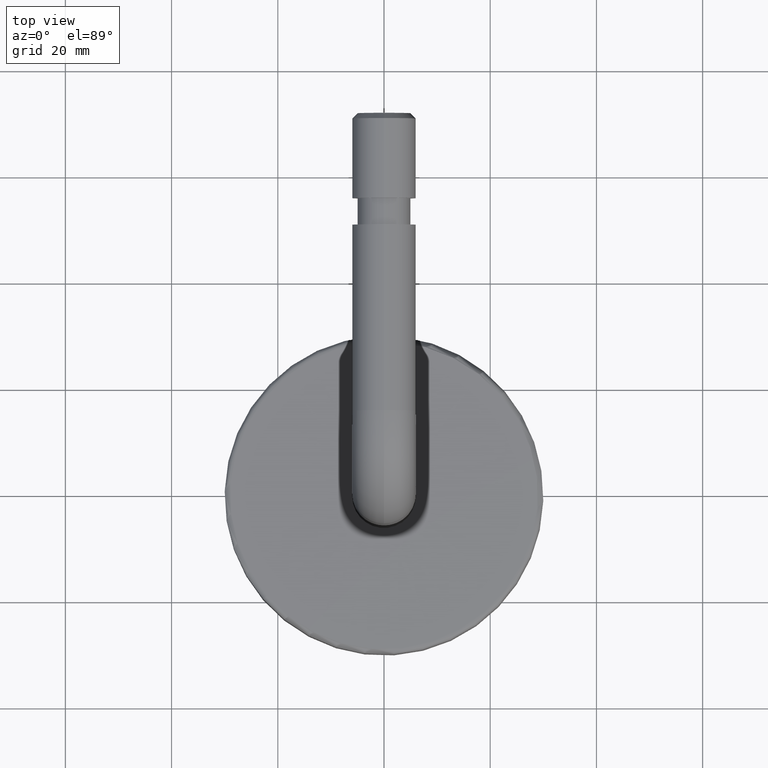
[diagram: clean part render]
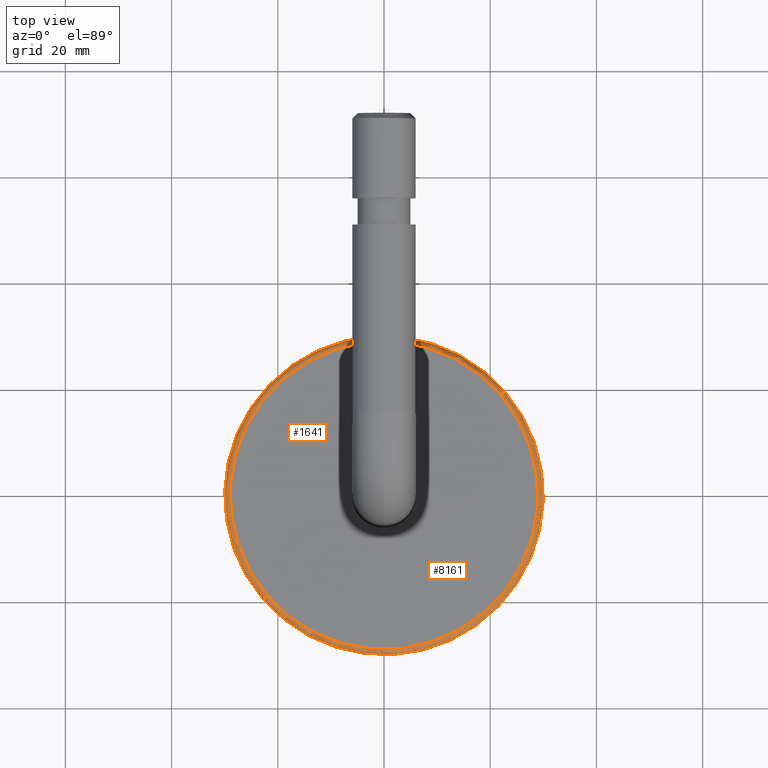
[diagram: same view with one multi-face feature highlighted, each face labeled with its STEP entity id]
A machine part, top view. The highlighted faces form ONE feature: a constant-radius fillet chain: 2 tangent blend faces with common blend radius 1 mm. The faces share edges in the B-rep.
Their STEP definitions:
[1] entity #8161 (Torus):
#266 = DIRECTION ( 'NONE',  ( 1.000000000000000000, 0.000000000000000000, 0.000000000000000000 ) ) ;
#387 = CARTESIAN_POINT ( 'NONE',  ( -28.99999999999999645, 3.612708057484691604E-15, 0.000000000000000000 ) ) ;
#864 = FACE_OUTER_BOUND ( 'NONE', #11800, .T. ) ;
#1372 = CARTESIAN_POINT ( 'NONE',  ( 30.00000000000000000, 0.000000000000000000, -1.000000000000000000 ) ) ;
#1994 = AXIS2_PLACEMENT_3D ( 'NONE', #12450, #2045, #6669 ) ;
#2045 = DIRECTION ( 'NONE',  ( 1.224646799147353207E-16, 1.000000000000000000, 0.000000000000000000 ) ) ;
#2215 = CIRCLE ( 'NONE', #1994, 1.000000000000000888 ) ;
#2230 = EDGE_CURVE ( 'NONE', #6814, #11018, #8477, .T. ) ;
#2308 = AXIS2_PLACEMENT_3D ( 'NONE', #3022, #7730, #12403 ) ;
#2870 = DIRECTION ( 'NONE',  ( -0.000000000000000000, -0.000000000000000000, 1.000000000000000000 ) ) ;
#3022 = CARTESIAN_POINT ( 'NONE',  ( 0.000000000000000000, 0.000000000000000000, -1.000000000000000000 ) ) ;
#3123 = EDGE_CURVE ( 'NONE', #6814, #12886, #2215, .T. ) ;
#3782 = ORIENTED_EDGE ( 'NONE', *, *, #3123, .F. ) ;
#3916 = CARTESIAN_POINT ( 'NONE',  ( 0.000000000000000000, 0.000000000000000000, 0.000000000000000000 ) ) ;
#4606 = ORIENTED_EDGE ( 'NONE', *, *, #6408, .F. ) ;
#4721 = ORIENTED_EDGE ( 'NONE', *, *, #12899, .T. ) ;
#5147 = DIRECTION ( 'NONE',  ( 0.000000000000000000, 0.000000000000000000, -1.000000000000000000 ) ) ;
#5613 = TOROIDAL_SURFACE ( 'NONE', #6104, 28.99999999999999645, 1.000000000000000444 ) ;
#6038 = AXIS2_PLACEMENT_3D ( 'NONE', #12223, #11168, #5147 ) ;
#6104 = AXIS2_PLACEMENT_3D ( 'NONE', #11940, #8421, #266 ) ;
#6408 = EDGE_CURVE ( 'NONE', #12886, #12982, #8225, .T. ) ;
#6669 = DIRECTION ( 'NONE',  ( -1.000000000000000000, 1.224646799147349509E-16, 0.000000000000000000 ) ) ;
#6814 = VERTEX_POINT ( 'NONE', #13840 ) ;
#7730 = DIRECTION ( 'NONE',  ( -0.000000000000000000, -0.000000000000000000, 1.000000000000000000 ) ) ;
#7847 = CARTESIAN_POINT ( 'NONE',  ( 28.99999999999999645, 0.000000000000000000, 0.000000000000000000 ) ) ;
#8161 = ADVANCED_FACE ( 'NONE', ( #864 ), #5613, .T. ) ;
#8225 = CIRCLE ( 'NONE', #9642, 28.99999999999999645 ) ;
#8421 = DIRECTION ( 'NONE',  ( -0.000000000000000000, -0.000000000000000000, 1.000000000000000000 ) ) ;
#8477 = CIRCLE ( 'NONE', #2308, 30.00000000000000000 ) ;
#8724 = DIRECTION ( 'NONE',  ( 1.000000000000000000, 0.000000000000000000, 0.000000000000000000 ) ) ;
#9642 = AXIS2_PLACEMENT_3D ( 'NONE', #3916, #2870, #8724 ) ;
#11018 = VERTEX_POINT ( 'NONE', #1372 ) ;
#11168 = DIRECTION ( 'NONE',  ( 0.000000000000000000, -1.000000000000000000, 0.000000000000000000 ) ) ;
#11800 = EDGE_LOOP ( 'NONE', ( #3782, #12317, #4721, #4606 ) ) ;
#11940 = CARTESIAN_POINT ( 'NONE',  ( 0.000000000000000000, 0.000000000000000000, -1.000000000000000000 ) ) ;
#12223 = CARTESIAN_POINT ( 'NONE',  ( 28.99999999999999645, 0.000000000000000000, -1.000000000000000000 ) ) ;
#12317 = ORIENTED_EDGE ( 'NONE', *, *, #2230, .T. ) ;
#12403 = DIRECTION ( 'NONE',  ( 1.000000000000000000, 0.000000000000000000, 0.000000000000000000 ) ) ;
#12450 = CARTESIAN_POINT ( 'NONE',  ( -28.99999999999999645, 3.551475717527324030E-15, -1.000000000000000000 ) ) ;
#12886 = VERTEX_POINT ( 'NONE', #387 ) ;
#12899 = EDGE_CURVE ( 'NONE', #11018, #12982, #14210, .T. ) ;
#12982 = VERTEX_POINT ( 'NONE', #7847 ) ;
#13840 = CARTESIAN_POINT ( 'NONE',  ( -30.00000000000000000, 3.673940397442059178E-15, -1.000000000000000000 ) ) ;
#14210 = CIRCLE ( 'NONE', #6038, 1.000000000000000444 ) ;
[2] entity #1641 (Torus):
#89 = EDGE_CURVE ( 'NONE', #11018, #6814, #5556, .T. ) ;
#387 = CARTESIAN_POINT ( 'NONE',  ( -28.99999999999999645, 3.612708057484691604E-15, 0.000000000000000000 ) ) ;
#430 = CARTESIAN_POINT ( 'NONE',  ( 0.000000000000000000, 0.000000000000000000, -1.000000000000000000 ) ) ;
#504 = ORIENTED_EDGE ( 'NONE', *, *, #3123, .T. ) ;
#1372 = CARTESIAN_POINT ( 'NONE',  ( 30.00000000000000000, 0.000000000000000000, -1.000000000000000000 ) ) ;
#1523 = FACE_OUTER_BOUND ( 'NONE', #6071, .T. ) ;
#1641 = ADVANCED_FACE ( 'NONE', ( #1523 ), #12553, .T. ) ;
#1994 = AXIS2_PLACEMENT_3D ( 'NONE', #12450, #2045, #6669 ) ;
#2045 = DIRECTION ( 'NONE',  ( 1.224646799147353207E-16, 1.000000000000000000, 0.000000000000000000 ) ) ;
#2215 = CIRCLE ( 'NONE', #1994, 1.000000000000000888 ) ;
#3123 = EDGE_CURVE ( 'NONE', #6814, #12886, #2215, .T. ) ;
#5147 = DIRECTION ( 'NONE',  ( 0.000000000000000000, 0.000000000000000000, -1.000000000000000000 ) ) ;
#5556 = CIRCLE ( 'NONE', #14133, 30.00000000000000000 ) ;
#6038 = AXIS2_PLACEMENT_3D ( 'NONE', #12223, #11168, #5147 ) ;
#6039 = ORIENTED_EDGE ( 'NONE', *, *, #89, .T. ) ;
#6071 = EDGE_LOOP ( 'NONE', ( #6039, #504, #8432, #15272 ) ) ;
#6199 = DIRECTION ( 'NONE',  ( -0.000000000000000000, -0.000000000000000000, 1.000000000000000000 ) ) ;
#6669 = DIRECTION ( 'NONE',  ( -1.000000000000000000, 1.224646799147349509E-16, 0.000000000000000000 ) ) ;
#6814 = VERTEX_POINT ( 'NONE', #13840 ) ;
#7375 = CIRCLE ( 'NONE', #7421, 28.99999999999999645 ) ;
#7421 = AXIS2_PLACEMENT_3D ( 'NONE', #8706, #8654, #7505 ) ;
#7505 = DIRECTION ( 'NONE',  ( 1.000000000000000000, 0.000000000000000000, 0.000000000000000000 ) ) ;
#7847 = CARTESIAN_POINT ( 'NONE',  ( 28.99999999999999645, 0.000000000000000000, 0.000000000000000000 ) ) ;
#8121 = DIRECTION ( 'NONE',  ( -0.000000000000000000, -0.000000000000000000, 1.000000000000000000 ) ) ;
#8432 = ORIENTED_EDGE ( 'NONE', *, *, #10825, .F. ) ;
#8654 = DIRECTION ( 'NONE',  ( -0.000000000000000000, -0.000000000000000000, 1.000000000000000000 ) ) ;
#8706 = CARTESIAN_POINT ( 'NONE',  ( 0.000000000000000000, 0.000000000000000000, 0.000000000000000000 ) ) ;
#9070 = DIRECTION ( 'NONE',  ( 1.000000000000000000, 0.000000000000000000, 0.000000000000000000 ) ) ;
#10502 = DIRECTION ( 'NONE',  ( 1.000000000000000000, 0.000000000000000000, 0.000000000000000000 ) ) ;
#10825 = EDGE_CURVE ( 'NONE', #12982, #12886, #7375, .T. ) ;
#11018 = VERTEX_POINT ( 'NONE', #1372 ) ;
#11168 = DIRECTION ( 'NONE',  ( 0.000000000000000000, -1.000000000000000000, 0.000000000000000000 ) ) ;
#12223 = CARTESIAN_POINT ( 'NONE',  ( 28.99999999999999645, 0.000000000000000000, -1.000000000000000000 ) ) ;
#12450 = CARTESIAN_POINT ( 'NONE',  ( -28.99999999999999645, 3.551475717527324030E-15, -1.000000000000000000 ) ) ;
#12553 = TOROIDAL_SURFACE ( 'NONE', #12953, 28.99999999999999645, 1.000000000000000444 ) ;
#12886 = VERTEX_POINT ( 'NONE', #387 ) ;
#12899 = EDGE_CURVE ( 'NONE', #11018, #12982, #14210, .T. ) ;
#12953 = AXIS2_PLACEMENT_3D ( 'NONE', #15269, #8121, #10502 ) ;
#12982 = VERTEX_POINT ( 'NONE', #7847 ) ;
#13840 = CARTESIAN_POINT ( 'NONE',  ( -30.00000000000000000, 3.673940397442059178E-15, -1.000000000000000000 ) ) ;
#14133 = AXIS2_PLACEMENT_3D ( 'NONE', #430, #6199, #9070 ) ;
#14210 = CIRCLE ( 'NONE', #6038, 1.000000000000000444 ) ;
#15269 = CARTESIAN_POINT ( 'NONE',  ( 0.000000000000000000, 0.000000000000000000, -1.000000000000000000 ) ) ;
#15272 = ORIENTED_EDGE ( 'NONE', *, *, #12899, .F. ) ;